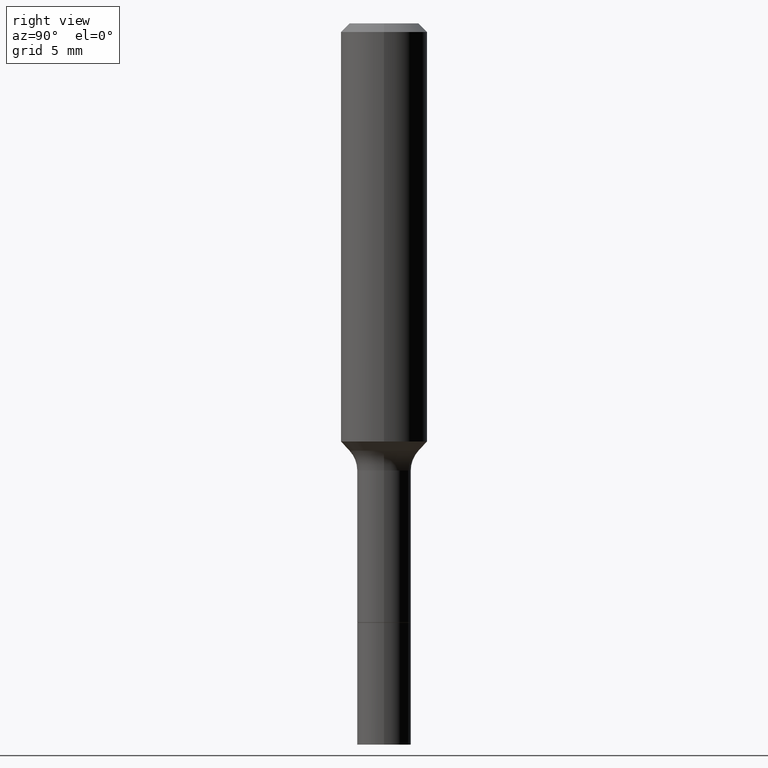
[diagram: clean part render]
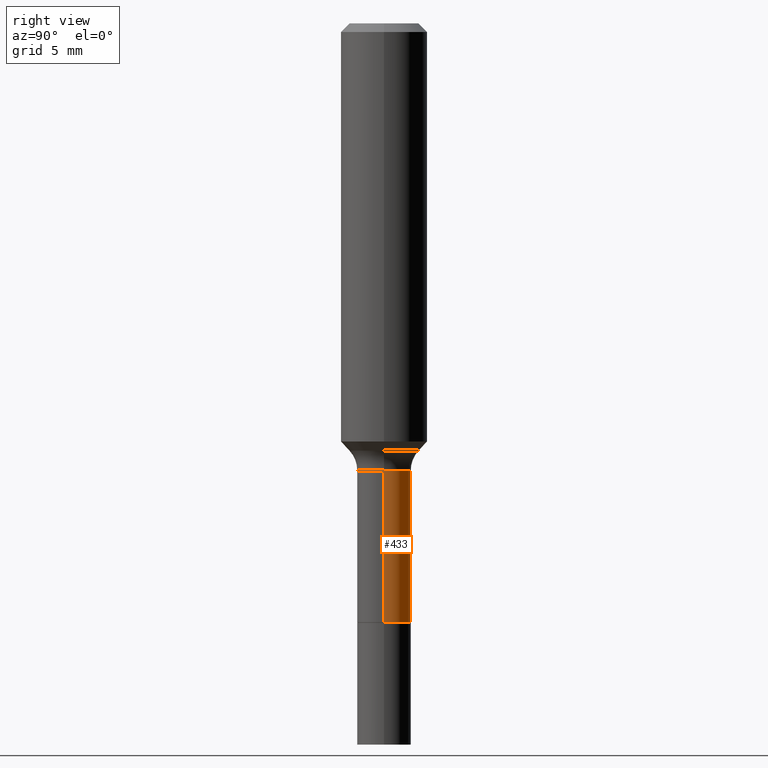
[diagram: same view with one face highlighted and labeled with its STEP entity id]
A machine part, right view. The second image highlights one B-rep face of the part: STEP entity #433.
In plain terms, the highlighted cylindrical surface (edge-blend (fillet) strip) has radius 1.8669 mm, axis along (-0, 0, 1).
Its self-contained STEP definition (entity closure, byte-faithful):
#4 = CARTESIAN_POINT ( 'NONE',  ( -0.07350000000000000977, -4.462713570749628133E-15, -1.635000000000000231 ) ) ;
#9 = DIRECTION ( 'NONE',  ( -2.445468806185136597E-29, 3.491481338843145583E-15, 1.000000000000000000 ) ) ;
#19 = DIRECTION ( 'NONE',  ( 1.000000000000000000, -6.982962677686265133E-15, 0.000000000000000000 ) ) ;
#23 = ORIENTED_EDGE ( 'NONE', *, *, #410, .T. ) ;
#43 = CIRCLE ( 'NONE', #247, 0.07349999999999994038 ) ;
#126 = DIRECTION ( 'NONE',  ( 1.000000000000000000, -6.982962677686273810E-15, 0.000000000000000000 ) ) ;
#142 = VERTEX_POINT ( 'NONE', #515 ) ;
#166 = AXIS2_PLACEMENT_3D ( 'NONE', #337, #9, #126 ) ;
#176 = CARTESIAN_POINT ( 'NONE',  ( 0.000000000000000000, 0.000000000000000000, 0.000000000000000000 ) ) ;
#185 = ORIENTED_EDGE ( 'NONE', *, *, #341, .T. ) ;
#231 = DIRECTION ( 'NONE',  ( -2.445468806185136877E-29, 3.491481338843145188E-15, 1.000000000000000000 ) ) ;
#247 = AXIS2_PLACEMENT_3D ( 'NONE', #456, #263, #19 ) ;
#263 = DIRECTION ( 'NONE',  ( -2.445468806185136597E-29, 3.491481338843145583E-15, 1.000000000000000000 ) ) ;
#265 = VERTEX_POINT ( 'NONE', #374 ) ;
#267 = FACE_OUTER_BOUND ( 'NONE', #506, .T. ) ;
#271 = DIRECTION ( 'NONE',  ( -2.445468806185136877E-29, 3.491481338843145188E-15, 1.000000000000000000 ) ) ;
#300 = VERTEX_POINT ( 'NONE', #4 ) ;
#303 = VERTEX_POINT ( 'NONE', #449 ) ;
#305 = VECTOR ( 'NONE', #231, 39.37007874015748143 ) ;
#306 = DIRECTION ( 'NONE',  ( -2.445468806185136597E-29, 3.491481338843145583E-15, 1.000000000000000000 ) ) ;
#335 = VECTOR ( 'NONE', #271, 39.37007874015748143 ) ;
#337 = CARTESIAN_POINT ( 'NONE',  ( 3.998341498112699076E-29, -5.708571989008543862E-15, -1.635000000000000231 ) ) ;
#341 = EDGE_CURVE ( 'NONE', #142, #300, #491, .T. ) ;
#347 = CYLINDRICAL_SURFACE ( 'NONE', #492, 0.07349999999999996814 ) ;
#350 = CARTESIAN_POINT ( 'NONE',  ( -0.07349999999999996814, 5.222489107836734102E-16, -3.615417291337354245E-30 ) ) ;
#374 = CARTESIAN_POINT ( 'NONE',  ( 0.07349999999999994038, -4.774600730867999221E-15, -1.220499999999999918 ) ) ;
#402 = EDGE_CURVE ( 'NONE', #142, #265, #428, .T. ) ;
#410 = EDGE_CURVE ( 'NONE', #300, #303, #505, .T. ) ;
#428 = LINE ( 'NONE', #461, #305 ) ;
#433 = ADVANCED_FACE ( 'NONE', ( #267 ), #347, .T. ) ;
#449 = CARTESIAN_POINT ( 'NONE',  ( -0.07349999999999994038, -4.462713570749628133E-15, -1.220499999999999918 ) ) ;
#456 = CARTESIAN_POINT ( 'NONE',  ( 2.984694677948959472E-29, -4.261352974058059028E-15, -1.220499999999999918 ) ) ;
#461 = CARTESIAN_POINT ( 'NONE',  ( 0.07349999999999996814, -5.132477568099403902E-16, 3.583989930210011434E-30 ) ) ;
#462 = ORIENTED_EDGE ( 'NONE', *, *, #402, .F. ) ;
#466 = DIRECTION ( 'NONE',  ( 1.000000000000000000, -6.982962677686266711E-15, 4.876176775795935793E-29 ) ) ;
#487 = EDGE_CURVE ( 'NONE', #265, #303, #43, .T. ) ;
#491 = CIRCLE ( 'NONE', #166, 0.07349999999999999589 ) ;
#492 = AXIS2_PLACEMENT_3D ( 'NONE', #176, #306, #466 ) ;
#496 = ORIENTED_EDGE ( 'NONE', *, *, #487, .F. ) ;
#505 = LINE ( 'NONE', #350, #335 ) ;
#506 = EDGE_LOOP ( 'NONE', ( #185, #23, #496, #462 ) ) ;
#515 = CARTESIAN_POINT ( 'NONE',  ( 0.07349999999999999589, -6.221819745818484844E-15, -1.635000000000000231 ) ) ;